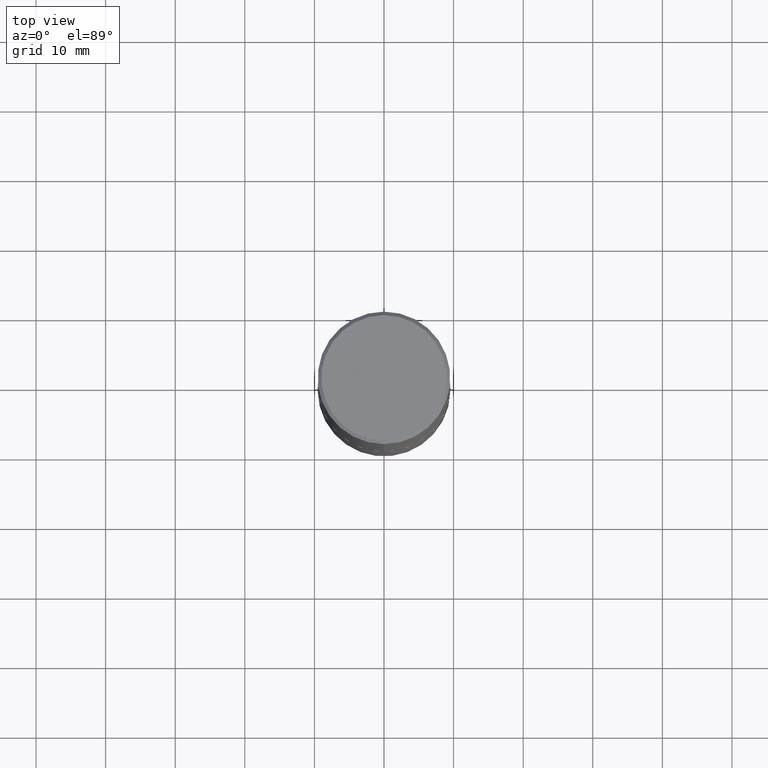
[diagram: clean part render]
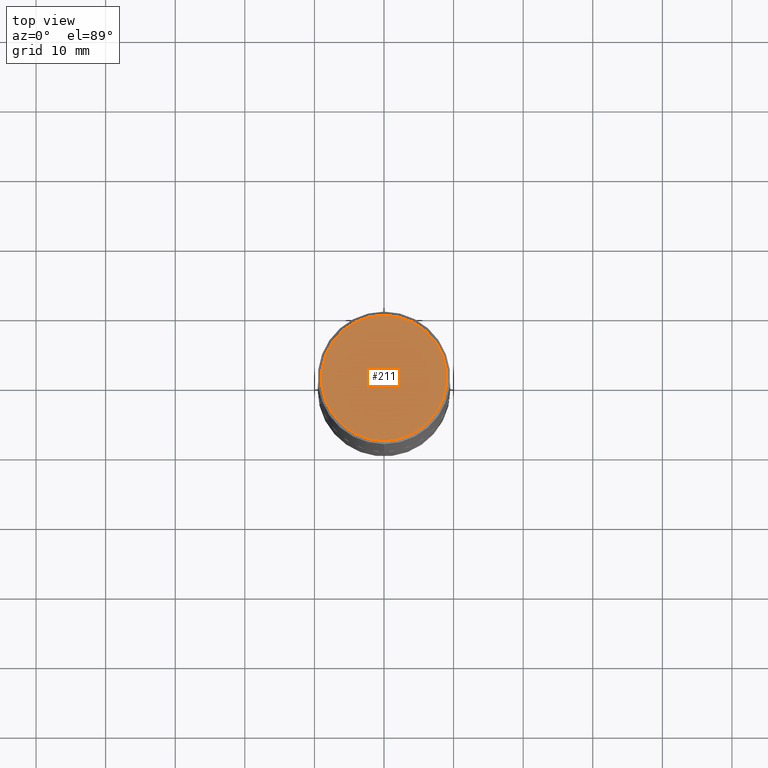
[diagram: same view with one face highlighted and labeled with its STEP entity id]
A machine part, top view. The second image highlights one B-rep face of the part: STEP entity #211.
In plain terms, the highlighted planar face has unit normal (0, -0, -1).
Its self-contained STEP definition (entity closure, byte-faithful):
#4 = ORIENTED_EDGE ( 'NONE', *, *, #342, .T. ) ;
#12 = CARTESIAN_POINT ( 'NONE',  ( 2.478951750578623815E-15, 0.3549999999999999267, -1.205582899487326820E-15 ) ) ;
#47 = EDGE_CURVE ( 'NONE', #412, #209, #399, .T. ) ;
#75 = FACE_OUTER_BOUND ( 'NONE', #113, .T. ) ;
#76 = CARTESIAN_POINT ( 'NONE',  ( 2.548781377355487113E-15, 0.3549999999999999267, -1.171179675447709813E-15 ) ) ;
#103 = DIRECTION ( 'NONE',  ( 2.444465131706344694E-29, -3.492918657822378868E-15, -1.000000000000000000 ) ) ;
#104 = AXIS2_PLACEMENT_3D ( 'NONE', #339, #115, #240 ) ;
#113 = EDGE_LOOP ( 'NONE', ( #4, #148 ) ) ;
#115 = DIRECTION ( 'NONE',  ( -2.444465131706345255E-29, 3.492918657822378473E-15, 1.000000000000000000 ) ) ;
#118 = CARTESIAN_POINT ( 'NONE',  ( -2.504081769186608216E-15, -0.3549999999999999267, 1.308792571606178433E-15 ) ) ;
#148 = ORIENTED_EDGE ( 'NONE', *, *, #47, .T. ) ;
#190 = DIRECTION ( 'NONE',  ( -2.444465131706345255E-29, 3.492918657822378473E-15, 1.000000000000000000 ) ) ;
#199 = PLANE ( 'NONE',  #237 ) ;
#209 = VERTEX_POINT ( 'NONE', #76 ) ;
#211 = ADVANCED_FACE ( 'NONE', ( #75 ), #199, .F. ) ;
#220 = CIRCLE ( 'NONE', #104, 0.3549999999999999267 ) ;
#237 = AXIS2_PLACEMENT_3D ( 'NONE', #12, #103, #334 ) ;
#240 = DIRECTION ( 'NONE',  ( -6.982962677686265922E-15, -1.000000000000000000, 3.492918657822378079E-15 ) ) ;
#282 = CARTESIAN_POINT ( 'NONE',  ( -1.681949631662511627E-45, 2.403353262744440834E-31, 6.880644807923424831E-17 ) ) ;
#292 = DIRECTION ( 'NONE',  ( -6.982962677686265922E-15, -1.000000000000000000, 3.492918657822378079E-15 ) ) ;
#334 = DIRECTION ( 'NONE',  ( 6.982962677686265922E-15, 1.000000000000000000, -3.492918657822378868E-15 ) ) ;
#336 = AXIS2_PLACEMENT_3D ( 'NONE', #282, #190, #292 ) ;
#339 = CARTESIAN_POINT ( 'NONE',  ( -1.681949631662511627E-45, 2.403353262744440834E-31, 6.880644807923424831E-17 ) ) ;
#342 = EDGE_CURVE ( 'NONE', #209, #412, #220, .T. ) ;
#399 = CIRCLE ( 'NONE', #336, 0.3549999999999999267 ) ;
#412 = VERTEX_POINT ( 'NONE', #118 ) ;